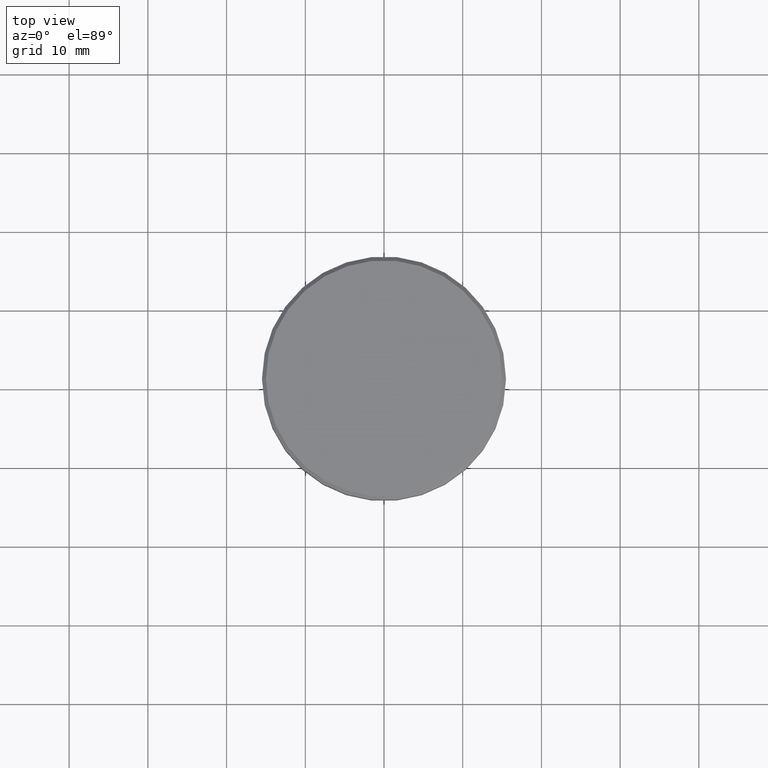
[diagram: clean part render]
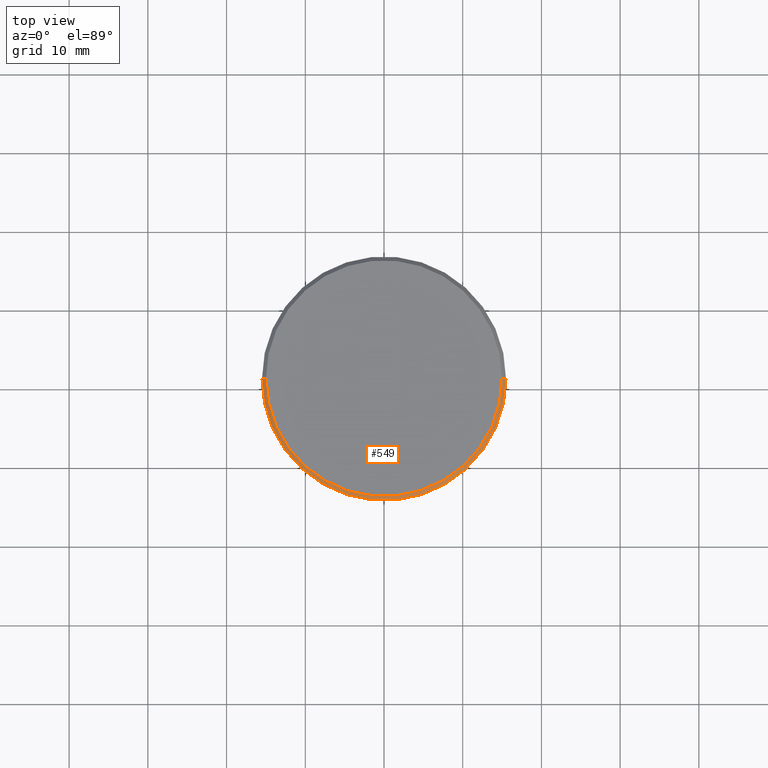
[diagram: same view with one face highlighted and labeled with its STEP entity id]
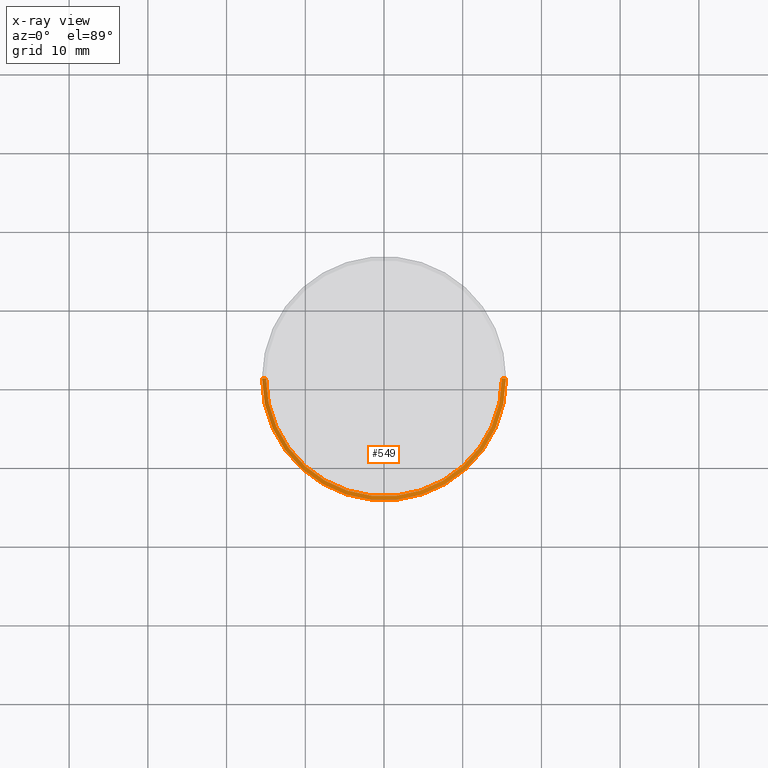
[diagram: x-ray of the same camera — body ghosted, the highlighted face saturated]
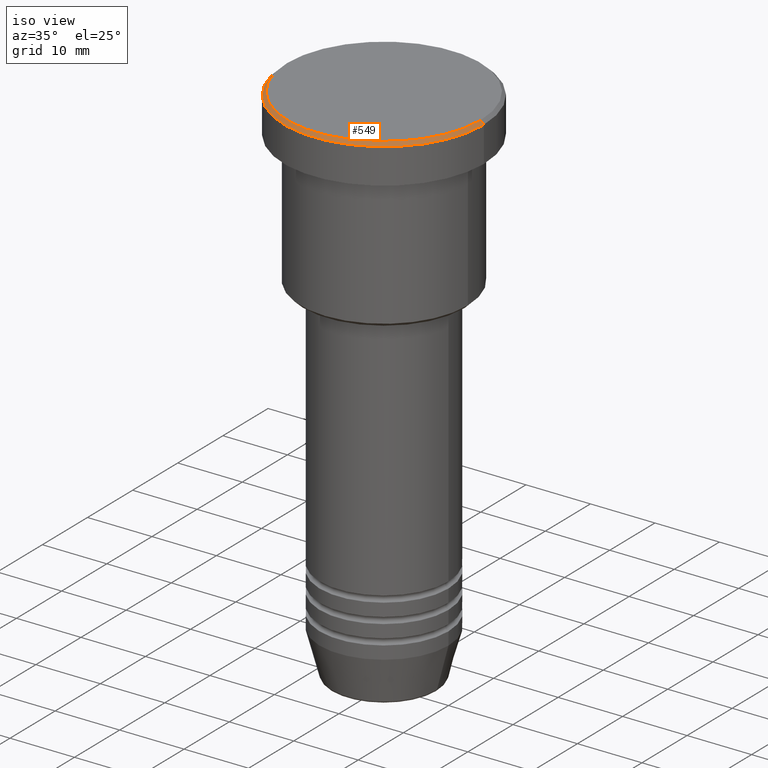
[diagram: same view with one face highlighted and labeled with its STEP entity id]
A machine part, top view. The second image highlights one B-rep face of the part: STEP entity #549.
The next image is the same camera in x-ray: the body ghosted, the highlighted face saturated — about 0% of this face is hidden behind the body in this view.
A second angle (iso view) of the same face is appended — the face is thin or edge-on in the first view.
In plain terms, the highlighted conical surface has half-angle 45 deg.
Its self-contained STEP definition (entity closure, byte-faithful):
#2 = EDGE_CURVE ( 'NONE', #420, #1041, #596, .T. ) ;
#6 = CARTESIAN_POINT ( 'NONE',  ( 0.000000000000000000, 0.000000000000000000, -0.4999999999999848455 ) ) ;
#18 = AXIS2_PLACEMENT_3D ( 'NONE', #427, #968, #1065 ) ;
#85 = CARTESIAN_POINT ( 'NONE',  ( 0.000000000000000000, 0.000000000000000000, 0.000000000000000000 ) ) ;
#93 = VECTOR ( 'NONE', #315, 1000.000000000000000 ) ;
#101 = EDGE_CURVE ( 'NONE', #420, #808, #779, .T. ) ;
#126 = VERTEX_POINT ( 'NONE', #732 ) ;
#154 = AXIS2_PLACEMENT_3D ( 'NONE', #6, #392, #1109 ) ;
#258 = FACE_OUTER_BOUND ( 'NONE', #1154, .T. ) ;
#299 = CARTESIAN_POINT ( 'NONE',  ( -15.00000000000002665, 0.000000000000000000, 0.000000000000000000 ) ) ;
#315 = DIRECTION ( 'NONE',  ( 0.7071067811865389130, 8.659560562354828088E-17, -0.7071067811865561215 ) ) ;
#330 = CARTESIAN_POINT ( 'NONE',  ( -15.50000000000000000, 1.898202538678397557E-15, -0.4999999999999848455 ) ) ;
#367 = ORIENTED_EDGE ( 'NONE', *, *, #101, .F. ) ;
#392 = DIRECTION ( 'NONE',  ( 0.000000000000000000, 0.000000000000000000, -1.000000000000000000 ) ) ;
#405 = EDGE_CURVE ( 'NONE', #808, #126, #945, .T. ) ;
#420 = VERTEX_POINT ( 'NONE', #859 ) ;
#427 = CARTESIAN_POINT ( 'NONE',  ( 0.000000000000000000, 0.000000000000000000, 0.000000000000000000 ) ) ;
#458 = ORIENTED_EDGE ( 'NONE', *, *, #2, .T. ) ;
#485 = CIRCLE ( 'NONE', #154, 15.50000000000000000 ) ;
#498 = CARTESIAN_POINT ( 'NONE',  ( 15.00000000000002665, 1.836970198721033139E-15, 0.000000000000000000 ) ) ;
#549 = ADVANCED_FACE ( 'NONE', ( #258 ), #745, .T. ) ;
#559 = EDGE_CURVE ( 'NONE', #126, #1041, #485, .T. ) ;
#596 = LINE ( 'NONE', #299, #1042 ) ;
#597 = ORIENTED_EDGE ( 'NONE', *, *, #559, .F. ) ;
#676 = ORIENTED_EDGE ( 'NONE', *, *, #405, .F. ) ;
#732 = CARTESIAN_POINT ( 'NONE',  ( 15.50000000000000000, 0.000000000000000000, -0.4999999999999848455 ) ) ;
#735 = CARTESIAN_POINT ( 'NONE',  ( 15.00000000000002665, 1.867586368699715348E-15, 0.000000000000000000 ) ) ;
#745 = CONICAL_SURFACE ( 'NONE', #840, 15.00000000000002665, 0.7853981633974361776 ) ;
#779 = CIRCLE ( 'NONE', #18, 15.00000000000002665 ) ;
#808 = VERTEX_POINT ( 'NONE', #735 ) ;
#840 = AXIS2_PLACEMENT_3D ( 'NONE', #85, #1089, #1157 ) ;
#859 = CARTESIAN_POINT ( 'NONE',  ( -15.00000000000002665, 0.000000000000000000, 0.000000000000000000 ) ) ;
#945 = LINE ( 'NONE', #498, #93 ) ;
#968 = DIRECTION ( 'NONE',  ( -0.000000000000000000, -0.000000000000000000, 1.000000000000000000 ) ) ;
#1015 = DIRECTION ( 'NONE',  ( -0.7071067811865389130, 0.000000000000000000, -0.7071067811865561215 ) ) ;
#1041 = VERTEX_POINT ( 'NONE', #330 ) ;
#1042 = VECTOR ( 'NONE', #1015, 1000.000000000000000 ) ;
#1065 = DIRECTION ( 'NONE',  ( 1.000000000000000000, 0.000000000000000000, 0.000000000000000000 ) ) ;
#1089 = DIRECTION ( 'NONE',  ( 0.000000000000000000, 0.000000000000000000, -1.000000000000000000 ) ) ;
#1109 = DIRECTION ( 'NONE',  ( 1.000000000000000000, 0.000000000000000000, 0.000000000000000000 ) ) ;
#1154 = EDGE_LOOP ( 'NONE', ( #676, #367, #458, #597 ) ) ;
#1157 = DIRECTION ( 'NONE',  ( -1.000000000000000000, 0.000000000000000000, 0.000000000000000000 ) ) ;